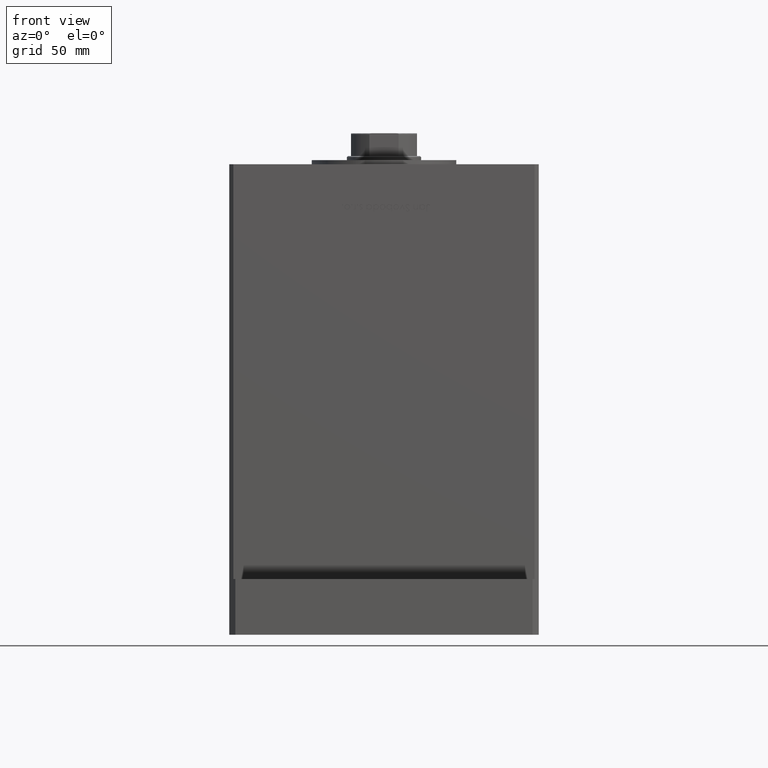
[diagram: clean part render]
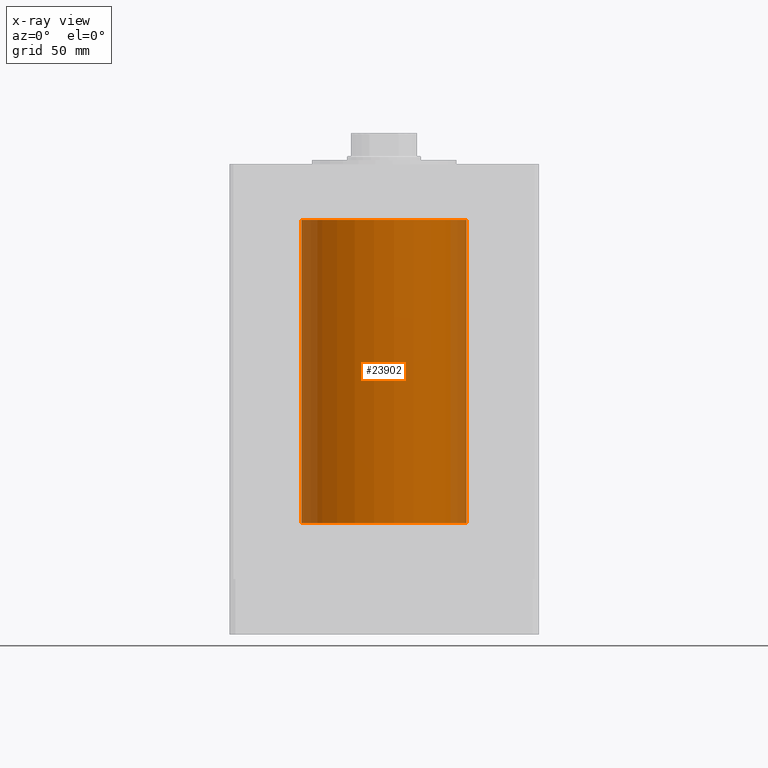
[diagram: x-ray — body ghosted, one internal face saturated and labeled with its STEP entity id]
A machine part, front view, then the same camera in x-ray: the body is ghosted and one INTERNAL B-rep face — a face not visible from any outside direction — is saturated and labeled: STEP entity #23902.
In plain terms, the highlighted cylindrical surface (partial cylindrical patch) has radius 40 mm, axis along (-0, -0, -1).
Its self-contained STEP definition (entity closure, byte-faithful):
#2231 = AXIS2_PLACEMENT_3D ( 'NONE', #35061, #27469, #19611 ) ;
#2923 = LINE ( 'NONE', #52591, #39112 ) ;
#6608 = CIRCLE ( 'NONE', #52568, 40.00000000000000000 ) ;
#7245 = FACE_OUTER_BOUND ( 'NONE', #46374, .T. ) ;
#7466 = DIRECTION ( 'NONE',  ( 1.000000000000000000, 0.000000000000000000, 0.000000000000000000 ) ) ;
#7895 = VERTEX_POINT ( 'NONE', #41624 ) ;
#10886 = EDGE_CURVE ( 'NONE', #7895, #22217, #2923, .T. ) ;
#12116 = CYLINDRICAL_SURFACE ( 'NONE', #16876, 40.00000000000000000 ) ;
#13370 = ORIENTED_EDGE ( 'NONE', *, *, #27472, .F. ) ;
#15395 = DIRECTION ( 'NONE',  ( -0.000000000000000000, -0.000000000000000000, -1.000000000000000000 ) ) ;
#16460 = CARTESIAN_POINT ( 'NONE',  ( 0.000000000000000000, 0.000000000000000000, 147.0000000000000000 ) ) ;
#16876 = AXIS2_PLACEMENT_3D ( 'NONE', #16460, #28678, #44447 ) ;
#19611 = DIRECTION ( 'NONE',  ( 1.000000000000000000, 0.000000000000000000, 0.000000000000000000 ) ) ;
#20030 = DIRECTION ( 'NONE',  ( -0.000000000000000000, -0.000000000000000000, -1.000000000000000000 ) ) ;
#22217 = VERTEX_POINT ( 'NONE', #46505 ) ;
#23295 = VERTEX_POINT ( 'NONE', #35063 ) ;
#23391 = CARTESIAN_POINT ( 'NONE',  ( 40.00000000000000000, 4.898587196589413026E-15, 147.0000000000000000 ) ) ;
#23902 = ADVANCED_FACE ( 'NONE', ( #7245 ), #12116, .F. ) ;
#24087 = CARTESIAN_POINT ( 'NONE',  ( 40.00000000000000000, 4.898587196589413026E-15, 147.0000000000000000 ) ) ;
#24553 = DIRECTION ( 'NONE',  ( -0.000000000000000000, 0.000000000000000000, 1.000000000000000000 ) ) ;
#25400 = ORIENTED_EDGE ( 'NONE', *, *, #10886, .F. ) ;
#27469 = DIRECTION ( 'NONE',  ( -0.000000000000000000, 0.000000000000000000, 1.000000000000000000 ) ) ;
#27472 = EDGE_CURVE ( 'NONE', #22217, #23295, #41243, .T. ) ;
#28131 = EDGE_CURVE ( 'NONE', #7895, #44629, #6608, .T. ) ;
#28678 = DIRECTION ( 'NONE',  ( -0.000000000000000000, -0.000000000000000000, -1.000000000000000000 ) ) ;
#32433 = CARTESIAN_POINT ( 'NONE',  ( 0.000000000000000000, 0.000000000000000000, 147.0000000000000000 ) ) ;
#34718 = ORIENTED_EDGE ( 'NONE', *, *, #53498, .T. ) ;
#35061 = CARTESIAN_POINT ( 'NONE',  ( 0.000000000000000000, 0.000000000000000000, 0.000000000000000000 ) ) ;
#35063 = CARTESIAN_POINT ( 'NONE',  ( 40.00000000000000000, 4.898587196589413026E-15, 0.000000000000000000 ) ) ;
#36570 = LINE ( 'NONE', #24087, #47088 ) ;
#39112 = VECTOR ( 'NONE', #15395, 1000.000000000000000 ) ;
#41243 = CIRCLE ( 'NONE', #2231, 40.00000000000000000 ) ;
#41624 = CARTESIAN_POINT ( 'NONE',  ( -40.00000000000000000, 0.000000000000000000, 147.0000000000000000 ) ) ;
#43907 = ORIENTED_EDGE ( 'NONE', *, *, #28131, .T. ) ;
#44447 = DIRECTION ( 'NONE',  ( -1.000000000000000000, 0.000000000000000000, 0.000000000000000000 ) ) ;
#44629 = VERTEX_POINT ( 'NONE', #23391 ) ;
#46374 = EDGE_LOOP ( 'NONE', ( #43907, #34718, #13370, #25400 ) ) ;
#46505 = CARTESIAN_POINT ( 'NONE',  ( -40.00000000000000000, 0.000000000000000000, 0.000000000000000000 ) ) ;
#47088 = VECTOR ( 'NONE', #20030, 1000.000000000000000 ) ;
#52568 = AXIS2_PLACEMENT_3D ( 'NONE', #32433, #24553, #7466 ) ;
#52591 = CARTESIAN_POINT ( 'NONE',  ( -40.00000000000000000, 0.000000000000000000, 147.0000000000000000 ) ) ;
#53498 = EDGE_CURVE ( 'NONE', #44629, #23295, #36570, .T. ) ;